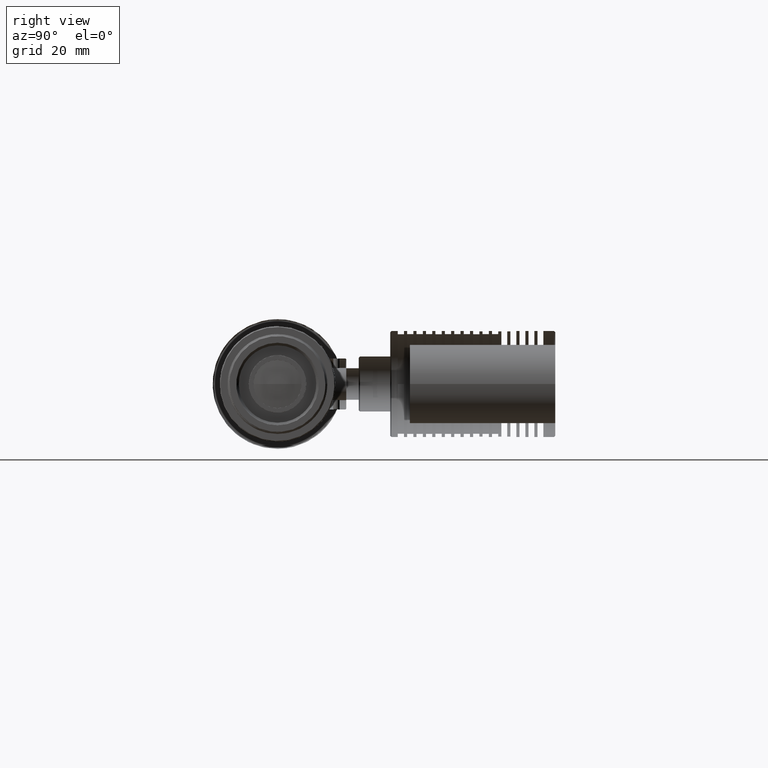
[diagram: clean part render]
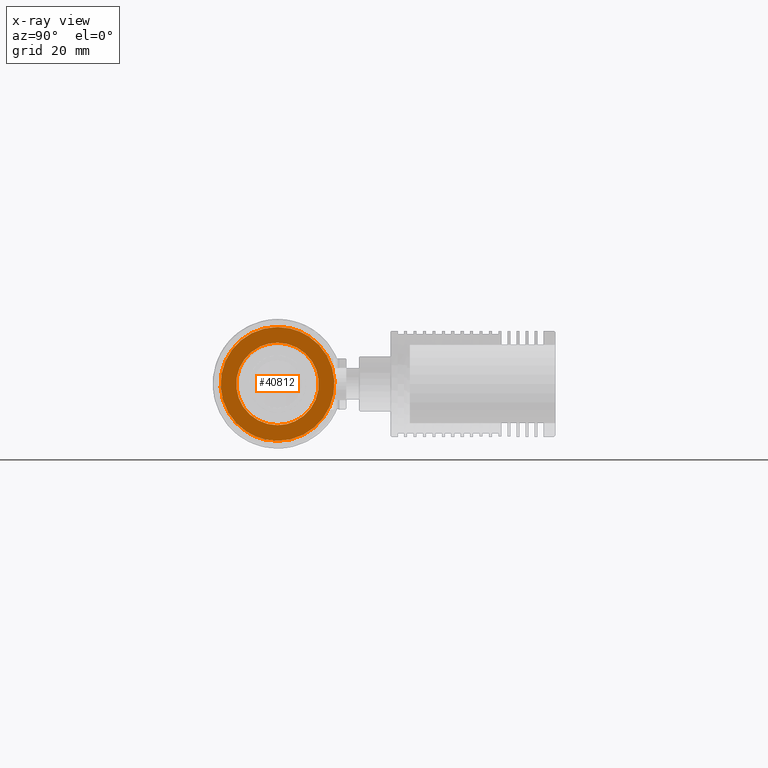
[diagram: x-ray — body ghosted, one internal face saturated and labeled with its STEP entity id]
A machine part, right view, then the same camera in x-ray: the body is ghosted and one INTERNAL B-rep face — a face not visible from any outside direction — is saturated and labeled: STEP entity #40812.
In plain terms, the highlighted planar face has unit normal (1, 0, 0).
Its self-contained STEP definition (entity closure, byte-faithful):
#459 = CARTESIAN_POINT ( 'NONE',  ( 102.8900000000000006, -6.448859292629139846E-15, 10.50000000000000000 ) ) ;
#733 = CARTESIAN_POINT ( 'NONE',  ( 102.8899999994734884, -14.21647596389118640, 3.354800782324097952 ) ) ;
#955 = CARTESIAN_POINT ( 'NONE',  ( 102.8899999994735026, -13.58940915432213536, -5.356382730668563852 ) ) ;
#1876 = B_SPLINE_CURVE_WITH_KNOTS ( 'NONE', 3,
 ( #36758, #34056, #23089, #6945 ),
 .UNSPECIFIED., .F., .F.,
 ( 4, 4 ),
 ( 0.000000000000000000, 1.000000000000000000 ),
 .UNSPECIFIED. ) ;
#1895 = ORIENTED_EDGE ( 'NONE', *, *, #42356, .F. ) ;
#2138 = CARTESIAN_POINT ( 'NONE',  ( 102.8900000000000148, 9.174757077719709386, -5.287999293894433350 ) ) ;
#2589 = B_SPLINE_CURVE_WITH_KNOTS ( 'NONE', 3,
 ( #22985, #22535, #39358, #36435, #12241, #5963, #19625, #12467, #2599, #32631, #26119, #16265, #18951, #5739, #5081, #25897, #29940, #8880 ),
 .UNSPECIFIED., .F., .F.,
 ( 4, 2, 2, 2, 2, 2, 2, 2, 4 ),
 ( 0.5182546318781870998, 0.5784728028934137400, 0.6386909739086403803, 0.6989091449238669096, 0.7591273159390935499, 0.8193454869543201902, 0.8795636579695467194, 0.9397818289847733597, 1.000000000000000000 ),
 .UNSPECIFIED. ) ;
#2599 = CARTESIAN_POINT ( 'NONE',  ( 102.8899999994728915, 14.21647597404494334, -3.354800741361302130 ) ) ;
#2944 = CARTESIAN_POINT ( 'NONE',  ( 102.8900000000000148, -2.748352785772403717, -10.22671310501732655 ) ) ;
#3316 = FACE_OUTER_BOUND ( 'NONE', #31009, .T. ) ;
#4096 = CARTESIAN_POINT ( 'NONE',  ( 102.8899999994733037, -6.824320905978286333, 12.91477918096981092 ) ) ;
#4323 = CARTESIAN_POINT ( 'NONE',  ( 102.8899999994734173, -10.98501644411560108, 9.627683565816354871 ) ) ;
#4350 = VERTEX_POINT ( 'NONE', #22219 ) ;
#4422 = DIRECTION ( 'NONE',  ( 1.000000000000000000, 0.000000000000000000, 0.000000000000000000 ) ) ;
#5081 = CARTESIAN_POINT ( 'NONE',  ( 102.8899999994730194, 9.492825593420464614, 11.10176289549242945 ) ) ;
#5283 = CARTESIAN_POINT ( 'NONE',  ( 102.8900000000000290, 6.452740559736587223, 8.396501845180909029 ) ) ;
#5505 = CARTESIAN_POINT ( 'NONE',  ( 102.8900000000000148, 1.374446785945536487, -10.50000000000000000 ) ) ;
#5739 = CARTESIAN_POINT ( 'NONE',  ( 102.8899999994729768, 10.78189021114857304, 9.854629399910006526 ) ) ;
#5963 = CARTESIAN_POINT ( 'NONE',  ( 102.8899999994729626, 10.98501646179595781, -9.627683546362813871 ) ) ;
#6311 = CARTESIAN_POINT ( 'NONE',  ( 102.8900000000000148, -10.22671310501732833, 2.748352785772407714 ) ) ;
#6945 = CARTESIAN_POINT ( 'NONE',  ( 102.8899999997365882, -6.510030453242449200E-10, 14.49999999666746042 ) ) ;
#7580 = CARTESIAN_POINT ( 'NONE',  ( 102.8900000000000006, -3.142766472308954828E-10, -10.50000000000000000 ) ) ;
#7653 = VERTEX_POINT ( 'NONE', #18496 ) ;
#8701 = EDGE_CURVE ( 'NONE', #35799, #13611, #23564, .T. ) ;
#8866 = CARTESIAN_POINT ( 'NONE',  ( 102.8900000000000148, 8.396501845180893042, -6.452740559736600545 ) ) ;
#8880 = CARTESIAN_POINT ( 'NONE',  ( 102.8899999997368013, 3.182859032670180000, 14.14603972239273944 ) ) ;
#9418 = B_SPLINE_CURVE_WITH_KNOTS ( 'NONE', 3,
 ( #12765, #26868, #16778, #9861 ),
 .UNSPECIFIED., .F., .F.,
 ( 4, 4 ),
 ( 0.4817453670510662422, 0.5182546318781870998 ),
 .UNSPECIFIED. ) ;
#9861 = CARTESIAN_POINT ( 'NONE',  ( 102.8899999997365882, -1.535656663914764840E-15, -14.49999999666746042 ) ) ;
#9913 = CARTESIAN_POINT ( 'NONE',  ( 102.8900000000000006, -6.452740559736573012, -8.396501845180923240 ) ) ;
#10572 = B_SPLINE_CURVE_WITH_KNOTS ( 'NONE', 3,
 ( #34791, #10835, #31876, #4096, #35014, #4323, #14843, #17765, #733, #17987, #31655, #955, #14624, #38602, #36329, #28946, #39922, #39703 ),
 .UNSPECIFIED., .F., .F.,
 ( 4, 2, 2, 2, 2, 2, 2, 2, 4 ),
 ( 0.000000000000000000, 0.06021817088138328028, 0.1204363417627665606, 0.1806545126441498339, 0.2408726835255331211, 0.3010908544069164083, 0.3613090252882996678, 0.4215271961696829828, 0.4817453670510662422 ),
 .UNSPECIFIED. ) ;
#10835 = CARTESIAN_POINT ( 'NONE',  ( 102.8899999994731616, -1.764334750070068125, 14.50000000036836312 ) ) ;
#11133 = EDGE_CURVE ( 'NONE', #31737, #19043, #2589, .T. ) ;
#12228 = CARTESIAN_POINT ( 'NONE',  ( 102.8900000000000148, 10.49999999999999645, 1.374446785945550253 ) ) ;
#12241 = CARTESIAN_POINT ( 'NONE',  ( 102.8899999994730052, 8.355705947481178342, -11.98102897309155423 ) ) ;
#12457 = CARTESIAN_POINT ( 'NONE',  ( 102.8900000000000574, 1.374446785945505622, 10.50000000000000711 ) ) ;
#12467 = CARTESIAN_POINT ( 'NONE',  ( 102.8899999994729058, 13.69813613302809685, -5.071877720910201504 ) ) ;
#12746 = EDGE_CURVE ( 'NONE', #7653, #31737, #9418, .T. ) ;
#12765 = CARTESIAN_POINT ( 'NONE',  ( 102.8899999997366308, -3.182859123219696329, -14.14603970203349270 ) ) ;
#13611 = VERTEX_POINT ( 'NONE', #38422 ) ;
#14624 = CARTESIAN_POINT ( 'NONE',  ( 102.8899999994734884, -12.83048321130412717, -6.981516861357719428 ) ) ;
#14843 = CARTESIAN_POINT ( 'NONE',  ( 102.8899999994734600, -12.08216876762952552, 8.208780359559963102 ) ) ;
#15585 = CARTESIAN_POINT ( 'NONE',  ( 102.8899999999999864, 10.22671310501730346, 2.748352785772456564 ) ) ;
#15801 = CARTESIAN_POINT ( 'NONE',  ( 102.8900000000000006, -3.142766472308954828E-10, -10.50000000000000000 ) ) ;
#16153 = CARTESIAN_POINT ( 'NONE',  ( 102.8900000000000148, -9.174757077719688070, -5.287999293894483976 ) ) ;
#16265 = CARTESIAN_POINT ( 'NONE',  ( 102.8899999994729058, 13.58940913208800438, 5.356382788371044867 ) ) ;
#16603 = CARTESIAN_POINT ( 'NONE',  ( 102.8900000000000006, -8.396501845180916135, 6.452740559736581893 ) ) ;
#16778 = CARTESIAN_POINT ( 'NONE',  ( 102.8899999994732184, -1.069686502324114219, -14.50000000052680349 ) ) ;
#16792 = ORIENTED_EDGE ( 'NONE', *, *, #12746, .F. ) ;
#17634 = PLANE ( 'NONE',  #43041 ) ;
#17765 = CARTESIAN_POINT ( 'NONE',  ( 102.8899999994735026, -13.69813611934218223, 5.071877756507111812 ) ) ;
#17933 = CARTESIAN_POINT ( 'NONE',  ( 102.8900000000000432, -1.374446785945564020, 10.49999999999999822 ) ) ;
#17987 = CARTESIAN_POINT ( 'NONE',  ( 102.8899999994735168, -14.60615233258460144, -0.1522864350862225824 ) ) ;
#18496 = CARTESIAN_POINT ( 'NONE',  ( 102.8899999997366308, -3.182859123219696329, -14.14603970203349270 ) ) ;
#18940 = CARTESIAN_POINT ( 'NONE',  ( 102.8900000000000148, 9.174757077719695175, 5.287999293894461772 ) ) ;
#18951 = CARTESIAN_POINT ( 'NONE',  ( 102.8899999994729342, 12.83048318022239087, 6.981516919471308924 ) ) ;
#19043 = VERTEX_POINT ( 'NONE', #28378 ) ;
#19165 = CARTESIAN_POINT ( 'NONE',  ( 102.8899999999999864, 8.396501845180875279, 6.452740559736620973 ) ) ;
#19383 = CARTESIAN_POINT ( 'NONE',  ( 102.8900000000000290, 5.287999293894445785, -9.174757077719705833 ) ) ;
#19625 = CARTESIAN_POINT ( 'NONE',  ( 102.8899999994729342, 12.08216878507717773, -8.208780334723355665 ) ) ;
#19962 = CARTESIAN_POINT ( 'NONE',  ( 102.8900000000000148, -9.174757077719727150, 5.287999293894413810 ) ) ;
#20176 = CARTESIAN_POINT ( 'NONE',  ( 102.8899999999999864, -5.287999293894409369, -9.174757077719727150 ) ) ;
#22219 = CARTESIAN_POINT ( 'NONE',  ( 102.8899999997365882, -6.510030453242449200E-10, 14.49999999666746042 ) ) ;
#22295 = CARTESIAN_POINT ( 'NONE',  ( 102.8900000000000290, 2.748352785772416151, 10.22671310501731945 ) ) ;
#22522 = CARTESIAN_POINT ( 'NONE',  ( 102.8900000000000290, 6.452740559736608539, -8.396501845180891266 ) ) ;
#22535 = CARTESIAN_POINT ( 'NONE',  ( 102.8899999994731473, 1.764334752689474373, -14.50000000052687099 ) ) ;
#22985 = CARTESIAN_POINT ( 'NONE',  ( 102.8899999997365882, -1.535656663914764840E-15, -14.49999999666746042 ) ) ;
#23089 = CARTESIAN_POINT ( 'NONE',  ( 102.8899999994731473, 1.069686470518784072, 14.50000000062289196 ) ) ;
#23334 = CARTESIAN_POINT ( 'NONE',  ( 102.8899999999999864, -10.22671310501730702, -2.748352785772482765 ) ) ;
#23561 = CARTESIAN_POINT ( 'NONE',  ( 102.8900000000000290, -2.748352785772471218, 10.22671310501730879 ) ) ;
#23564 = B_SPLINE_CURVE_WITH_KNOTS ( 'NONE', 3,
 ( #33194, #33859, #2944, #20176, #9913, #30054, #16153, #23334, #29832, #37011, #6311, #19962, #16603, #43938, #26916, #23561, #17933, #459 ),
 .UNSPECIFIED., .F., .F.,
 ( 4, 2, 2, 2, 2, 2, 2, 2, 4 ),
 ( 0.000000000000000000, 0.1249999999999999445, 0.2499999999999998890, 0.3749999999999998890, 0.4999999999999998890, 0.6249999999999998890, 0.7499999999999998890, 0.8749999999999997780, 1.000000000000000000 ),
 .UNSPECIFIED. ) ;
#25140 = CARTESIAN_POINT ( 'NONE',  ( 102.8899999997365882, -1.535656663914764840E-15, -14.49999999666746042 ) ) ;
#25884 = CARTESIAN_POINT ( 'NONE',  ( 102.8899999999999864, 10.49999999999999822, -1.374446785945520055 ) ) ;
#25897 = CARTESIAN_POINT ( 'NONE',  ( 102.8899999994731189, 6.553562848617758618, 13.05425950117607670 ) ) ;
#26119 = CARTESIAN_POINT ( 'NONE',  ( 102.8899999994728915, 14.47737426364194313, 1.941265454612846275 ) ) ;
#26868 = CARTESIAN_POINT ( 'NONE',  ( 102.8899999994732326, -2.139330333802679895, -14.38115068245245531 ) ) ;
#26916 = CARTESIAN_POINT ( 'NONE',  ( 102.8900000000000148, -5.287999293894470654, 9.174757077719696952 ) ) ;
#26961 = EDGE_CURVE ( 'NONE', #13611, #35799, #34273, .T. ) ;
#28378 = CARTESIAN_POINT ( 'NONE',  ( 102.8899999997368013, 3.182859032670180000, 14.14603972239273944 ) ) ;
#28946 = CARTESIAN_POINT ( 'NONE',  ( 102.8899999994733463, -6.553562924850806048, -13.05425946237490287 ) ) ;
#29034 = CARTESIAN_POINT ( 'NONE',  ( 102.8900000000000006, -6.448859292629139846E-15, 10.50000000000000000 ) ) ;
#29832 = CARTESIAN_POINT ( 'NONE',  ( 102.8900000000000148, -10.49999999999999822, -1.374446785945574456 ) ) ;
#29940 = CARTESIAN_POINT ( 'NONE',  ( 102.8899999994731473, 4.904229027130481811, 13.75904846943560500 ) ) ;
#30019 = ORIENTED_EDGE ( 'NONE', *, *, #8701, .F. ) ;
#30054 = CARTESIAN_POINT ( 'NONE',  ( 102.8900000000000290, -8.396501845180868173, -6.452740559736646730 ) ) ;
#31009 = EDGE_LOOP ( 'NONE', ( #34369, #16792, #1895, #40455 ) ) ;
#31307 = DIRECTION ( 'NONE',  ( 0.000000000000000000, 1.000000000000000000, 0.000000000000000000 ) ) ;
#31655 = CARTESIAN_POINT ( 'NONE',  ( 102.8899999994735310, -14.47737427035516866, -1.941265400978499089 ) ) ;
#31737 = VERTEX_POINT ( 'NONE', #25140 ) ;
#31876 = CARTESIAN_POINT ( 'NONE',  ( 102.8899999994732610, -3.528150686950173309, 14.17444989589222892 ) ) ;
#32631 = CARTESIAN_POINT ( 'NONE',  ( 102.8899999994728915, 14.60615233253779977, 0.1522864850736308784 ) ) ;
#33194 = CARTESIAN_POINT ( 'NONE',  ( 102.8900000000000006, -3.142766472308954828E-10, -10.50000000000000000 ) ) ;
#33325 = EDGE_LOOP ( 'NONE', ( #30019, #39610 ) ) ;
#33859 = CARTESIAN_POINT ( 'NONE',  ( 102.8900000000000148, -1.374446785945491190, -10.50000000000000178 ) ) ;
#34056 = CARTESIAN_POINT ( 'NONE',  ( 102.8899999994731616, 2.139330271510762049, 14.38115068945014663 ) ) ;
#34273 = B_SPLINE_CURVE_WITH_KNOTS ( 'NONE', 3,
 ( #29034, #12457, #22295, #35969, #5283, #19165, #18940, #15585, #12228, #25884, #39569, #2138, #8866, #22522, #19383, #36195, #5505, #15801 ),
 .UNSPECIFIED., .F., .F.,
 ( 4, 2, 2, 2, 2, 2, 2, 2, 4 ),
 ( 0.000000000000000000, 0.1249999999999998890, 0.2499999999999997780, 0.3749999999999997780, 0.4999999999999997780, 0.6249999999999997780, 0.7499999999999997780, 0.8749999999999998890, 1.000000000000000000 ),
 .UNSPECIFIED. ) ;
#34369 = ORIENTED_EDGE ( 'NONE', *, *, #11133, .F. ) ;
#34791 = CARTESIAN_POINT ( 'NONE',  ( 102.8899999997365882, -6.510030453242449200E-10, 14.49999999666746042 ) ) ;
#34889 = FACE_BOUND ( 'NONE', #33325, .T. ) ;
#35014 = CARTESIAN_POINT ( 'NONE',  ( 102.8899999994733605, -8.355705932037537309, 11.98102898328416366 ) ) ;
#35799 = VERTEX_POINT ( 'NONE', #7580 ) ;
#35969 = CARTESIAN_POINT ( 'NONE',  ( 102.8900000000000148, 5.287999293894422692, 9.174757077719718268 ) ) ;
#36195 = CARTESIAN_POINT ( 'NONE',  ( 102.8900000000000148, 2.748352785772442353, -10.22671310501730879 ) ) ;
#36329 = CARTESIAN_POINT ( 'NONE',  ( 102.8899999994733889, -9.492825652207040221, -11.10176284460182039 ) ) ;
#36435 = CARTESIAN_POINT ( 'NONE',  ( 102.8899999994730337, 6.824320918960006921, -12.91477917464620617 ) ) ;
#36758 = CARTESIAN_POINT ( 'NONE',  ( 102.8899999997368013, 3.182859032670180000, 14.14603972239273944 ) ) ;
#37011 = CARTESIAN_POINT ( 'NONE',  ( 102.8899999999999864, -10.50000000000000711, 1.374446785945495408 ) ) ;
#38422 = CARTESIAN_POINT ( 'NONE',  ( 102.8900000000000006, -6.448859292629139846E-15, 10.50000000000000000 ) ) ;
#38602 = CARTESIAN_POINT ( 'NONE',  ( 102.8899999994734458, -10.78189026051188470, -9.854629345199118262 ) ) ;
#39358 = CARTESIAN_POINT ( 'NONE',  ( 102.8899999994731047, 3.528150693514546354, -14.17444989474658001 ) ) ;
#39569 = CARTESIAN_POINT ( 'NONE',  ( 102.8900000000000148, 10.22671310501731590, -2.748352785772429030 ) ) ;
#39610 = ORIENTED_EDGE ( 'NONE', *, *, #26961, .F. ) ;
#39703 = CARTESIAN_POINT ( 'NONE',  ( 102.8899999997366308, -3.182859123219696329, -14.14603970203349270 ) ) ;
#39922 = CARTESIAN_POINT ( 'NONE',  ( 102.8899999994733179, -4.904229111373941130, -13.75904843890511664 ) ) ;
#40455 = ORIENTED_EDGE ( 'NONE', *, *, #44205, .F. ) ;
#40812 = ADVANCED_FACE ( 'NONE', ( #3316, #34889 ), #17634, .F. ) ;
#42268 = CARTESIAN_POINT ( 'NONE',  ( 102.8900000000000006, 0.000000000000000000, 14.67399999999999949 ) ) ;
#42356 = EDGE_CURVE ( 'NONE', #4350, #7653, #10572, .T. ) ;
#43041 = AXIS2_PLACEMENT_3D ( 'NONE', #42268, #4422, #31307 ) ;
#43938 = CARTESIAN_POINT ( 'NONE',  ( 102.8900000000000432, -6.452740559736638737, 8.396501845180877055 ) ) ;
#44205 = EDGE_CURVE ( 'NONE', #19043, #4350, #1876, .T. ) ;